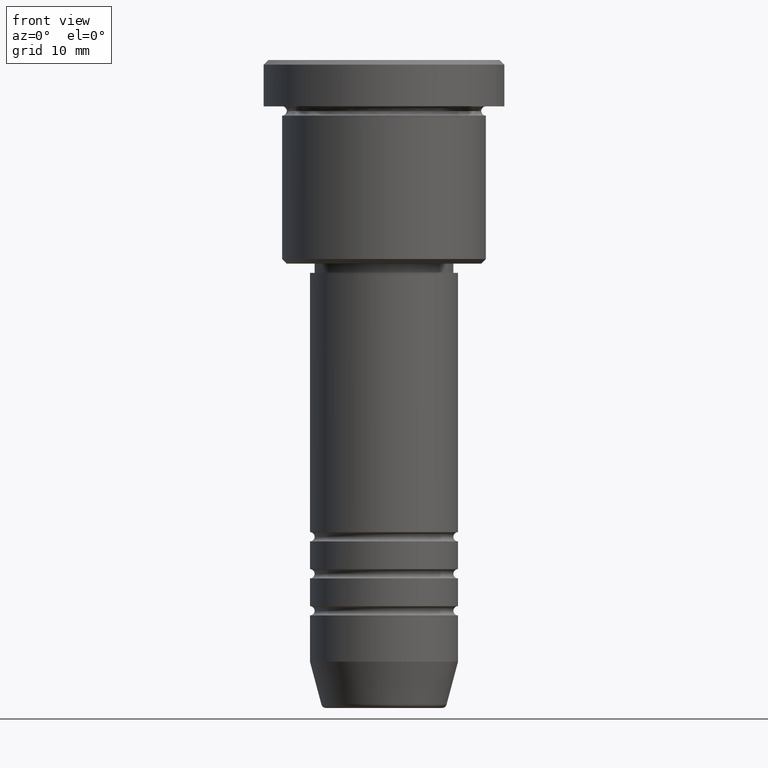
[diagram: clean part render]
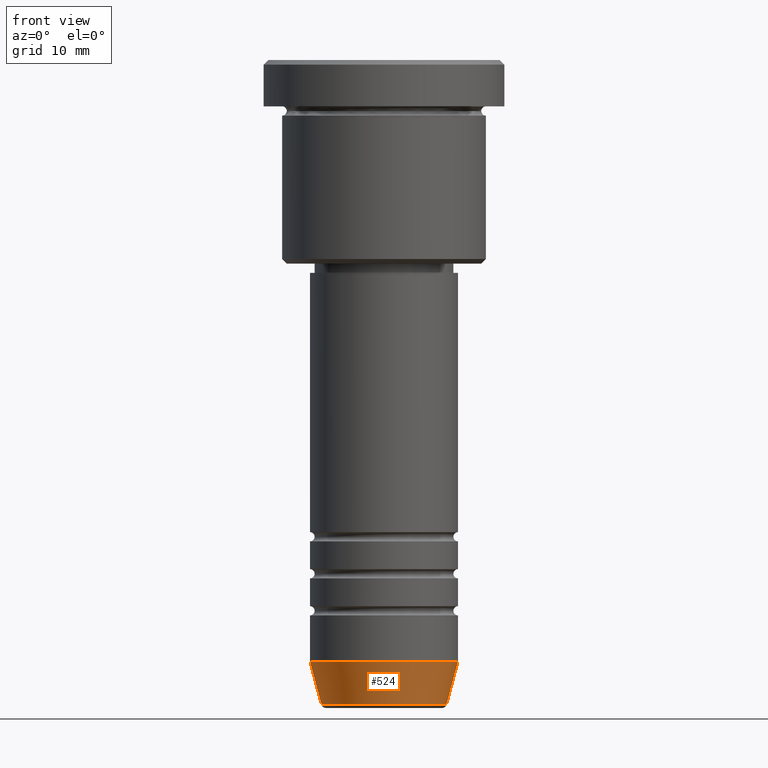
[diagram: same view with one face highlighted and labeled with its STEP entity id]
A machine part, front view. The second image highlights one B-rep face of the part: STEP entity #524.
In plain terms, the highlighted conical surface has half-angle 15 deg.
Its self-contained STEP definition (entity closure, byte-faithful):
#8 = DIRECTION ( 'NONE',  ( 1.000000000000000000, 0.000000000000000000, 0.000000000000000000 ) ) ;
#32 = DIRECTION ( 'NONE',  ( 1.000000000000000000, 0.000000000000000000, 0.000000000000000000 ) ) ;
#48 = CIRCLE ( 'NONE', #1024, 6.759553456999436882 ) ;
#89 = VECTOR ( 'NONE', #300, 1000.000000000000114 ) ;
#119 = EDGE_CURVE ( 'NONE', #273, #844, #615, .T. ) ;
#123 = VECTOR ( 'NONE', #569, 1000.000000000000114 ) ;
#156 = CONICAL_SURFACE ( 'NONE', #1170, 8.000000000000000000, 0.2617993877991502405 ) ;
#205 = LINE ( 'NONE', #664, #123 ) ;
#273 = VERTEX_POINT ( 'NONE', #892 ) ;
#300 = DIRECTION ( 'NONE',  ( 0.2588190451025214611, 0.000000000000000000, 0.9659258262890679791 ) ) ;
#379 = DIRECTION ( 'NONE',  ( -0.000000000000000000, -0.000000000000000000, 1.000000000000000000 ) ) ;
#403 = ORIENTED_EDGE ( 'NONE', *, *, #119, .F. ) ;
#460 = CARTESIAN_POINT ( 'NONE',  ( 0.000000000000000000, 0.000000000000000000, -69.62940952255127058 ) ) ;
#485 = EDGE_LOOP ( 'NONE', ( #693, #1159, #578, #403 ) ) ;
#493 = VERTEX_POINT ( 'NONE', #1048 ) ;
#524 = ADVANCED_FACE ( 'NONE', ( #639 ), #156, .T. ) ;
#564 = CARTESIAN_POINT ( 'NONE',  ( 8.000000000000000000, 0.000000000000000000, -65.00000000000000000 ) ) ;
#569 = DIRECTION ( 'NONE',  ( -0.2588190451025214611, 3.169619151431774186E-17, 0.9659258262890679791 ) ) ;
#577 = CARTESIAN_POINT ( 'NONE',  ( 0.000000000000000000, 0.000000000000000000, -65.00000000000000000 ) ) ;
#578 = ORIENTED_EDGE ( 'NONE', *, *, #1005, .T. ) ;
#615 = CIRCLE ( 'NONE', #976, 8.000000000000000000 ) ;
#639 = FACE_OUTER_BOUND ( 'NONE', #485, .T. ) ;
#640 = CARTESIAN_POINT ( 'NONE',  ( 8.000000000000000000, 0.000000000000000000, -65.00000000000000000 ) ) ;
#664 = CARTESIAN_POINT ( 'NONE',  ( -8.000000000000000000, 9.797174393178825657E-16, -65.00000000000000000 ) ) ;
#693 = ORIENTED_EDGE ( 'NONE', *, *, #903, .F. ) ;
#832 = DIRECTION ( 'NONE',  ( -0.000000000000000000, -0.000000000000000000, 1.000000000000000000 ) ) ;
#843 = CARTESIAN_POINT ( 'NONE',  ( 6.759553456999436882, 0.000000000000000000, -69.62940952255127058 ) ) ;
#844 = VERTEX_POINT ( 'NONE', #640 ) ;
#857 = DIRECTION ( 'NONE',  ( -0.000000000000000000, -0.000000000000000000, 1.000000000000000000 ) ) ;
#892 = CARTESIAN_POINT ( 'NONE',  ( -8.000000000000000000, 9.797174393178825657E-16, -65.00000000000000000 ) ) ;
#903 = EDGE_CURVE ( 'NONE', #493, #273, #205, .T. ) ;
#976 = AXIS2_PLACEMENT_3D ( 'NONE', #577, #857, #32 ) ;
#998 = DIRECTION ( 'NONE',  ( 1.000000000000000000, 0.000000000000000000, 0.000000000000000000 ) ) ;
#1005 = EDGE_CURVE ( 'NONE', #1030, #844, #1111, .T. ) ;
#1024 = AXIS2_PLACEMENT_3D ( 'NONE', #460, #832, #8 ) ;
#1028 = EDGE_CURVE ( 'NONE', #493, #1030, #48, .T. ) ;
#1030 = VERTEX_POINT ( 'NONE', #843 ) ;
#1048 = CARTESIAN_POINT ( 'NONE',  ( -6.759553456999437770, 9.037619948979306213E-16, -69.62940952255127058 ) ) ;
#1079 = CARTESIAN_POINT ( 'NONE',  ( 0.000000000000000000, 0.000000000000000000, -65.00000000000000000 ) ) ;
#1111 = LINE ( 'NONE', #564, #89 ) ;
#1159 = ORIENTED_EDGE ( 'NONE', *, *, #1028, .T. ) ;
#1170 = AXIS2_PLACEMENT_3D ( 'NONE', #1079, #379, #998 ) ;